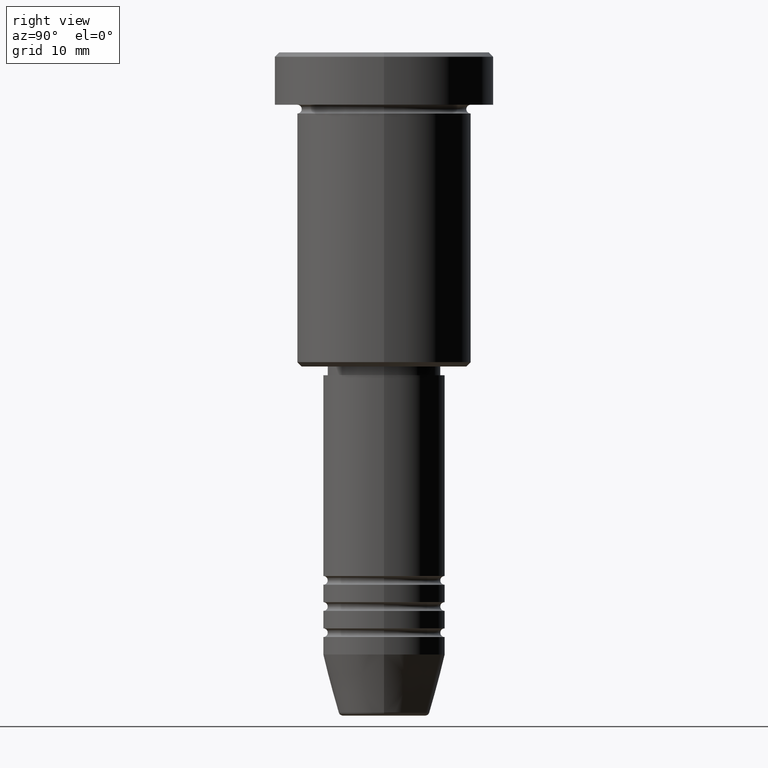
[diagram: clean part render]
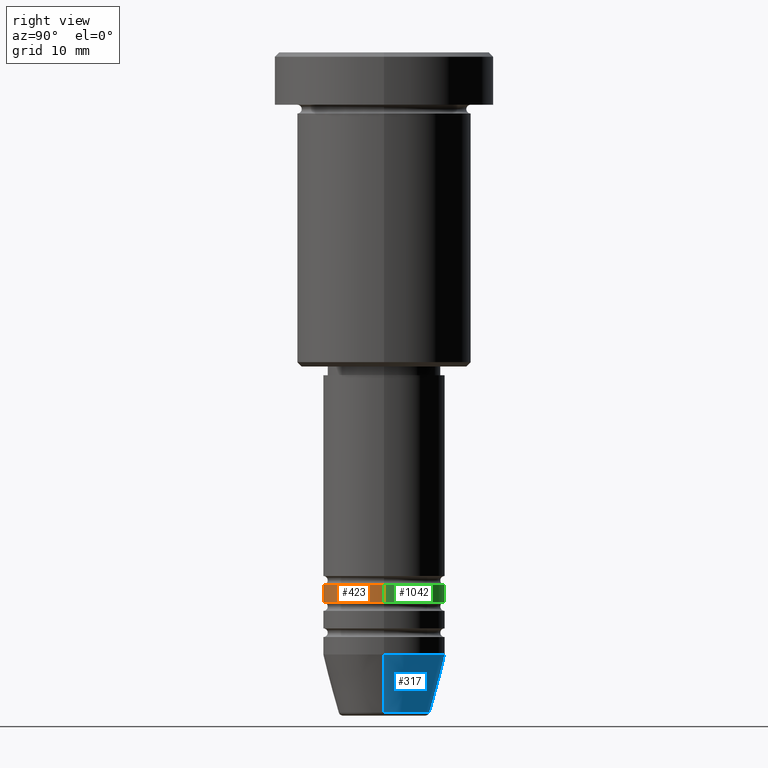
[diagram: same view with three faces highlighted in distinct colors, each labeled with its STEP entity id]
A machine part, right view with three faces highlighted in distinct colors.
Their STEP definitions:

[orange] entity #423 — the highlighted cylindrical surface (partial cylindrical patch) has radius 7 mm, axis along (-0, -0, 1).
#17 = CARTESIAN_POINT ( 'NONE',  ( 0.000000000000000000, 0.000000000000000000, 0.000000000000000000 ) ) ;
#20 = DIRECTION ( 'NONE',  ( 1.000000000000000000, 0.000000000000000000, 0.000000000000000000 ) ) ;
#33 = EDGE_CURVE ( 'NONE', #780, #972, #547, .T. ) ;
#81 = ORIENTED_EDGE ( 'NONE', *, *, #1152, .F. ) ;
#89 = ORIENTED_EDGE ( 'NONE', *, *, #522, .T. ) ;
#122 = CARTESIAN_POINT ( 'NONE',  ( 7.000000000000000000, 0.000000000000000000, -62.99999999999998579 ) ) ;
#233 = LINE ( 'NONE', #712, #901 ) ;
#236 = ORIENTED_EDGE ( 'NONE', *, *, #380, .T. ) ;
#248 = DIRECTION ( 'NONE',  ( -0.000000000000000000, -0.000000000000000000, 1.000000000000000000 ) ) ;
#263 = EDGE_LOOP ( 'NONE', ( #81, #89, #236, #328 ) ) ;
#267 = AXIS2_PLACEMENT_3D ( 'NONE', #953, #248, #765 ) ;
#294 = LINE ( 'NONE', #659, #1092 ) ;
#328 = ORIENTED_EDGE ( 'NONE', *, *, #33, .F. ) ;
#380 = EDGE_CURVE ( 'NONE', #773, #972, #294, .T. ) ;
#423 = ADVANCED_FACE ( 'NONE', ( #845 ), #1104, .T. ) ;
#425 = CARTESIAN_POINT ( 'NONE',  ( -7.000000000000000000, 8.572527594031473190E-16, -60.99999999999998579 ) ) ;
#478 = AXIS2_PLACEMENT_3D ( 'NONE', #848, #1026, #20 ) ;
#485 = DIRECTION ( 'NONE',  ( -0.000000000000000000, -0.000000000000000000, 1.000000000000000000 ) ) ;
#522 = EDGE_CURVE ( 'NONE', #889, #773, #836, .T. ) ;
#547 = CIRCLE ( 'NONE', #478, 7.000000000000000000 ) ;
#603 = CARTESIAN_POINT ( 'NONE',  ( 7.000000000000000000, 0.000000000000000000, -60.99999999999998579 ) ) ;
#659 = CARTESIAN_POINT ( 'NONE',  ( 7.000000000000000000, 0.000000000000000000, 0.000000000000000000 ) ) ;
#675 = CARTESIAN_POINT ( 'NONE',  ( -7.000000000000000000, 8.572527594031473190E-16, -62.99999999999998579 ) ) ;
#712 = CARTESIAN_POINT ( 'NONE',  ( -7.000000000000000000, 8.572527594031473190E-16, 0.000000000000000000 ) ) ;
#749 = DIRECTION ( 'NONE',  ( -0.000000000000000000, -0.000000000000000000, 1.000000000000000000 ) ) ;
#752 = DIRECTION ( 'NONE',  ( -0.000000000000000000, -0.000000000000000000, 1.000000000000000000 ) ) ;
#765 = DIRECTION ( 'NONE',  ( 1.000000000000000000, 0.000000000000000000, 0.000000000000000000 ) ) ;
#773 = VERTEX_POINT ( 'NONE', #122 ) ;
#780 = VERTEX_POINT ( 'NONE', #425 ) ;
#836 = CIRCLE ( 'NONE', #267, 7.000000000000000000 ) ;
#845 = FACE_OUTER_BOUND ( 'NONE', #263, .T. ) ;
#848 = CARTESIAN_POINT ( 'NONE',  ( 0.000000000000000000, 0.000000000000000000, -60.99999999999998579 ) ) ;
#889 = VERTEX_POINT ( 'NONE', #675 ) ;
#901 = VECTOR ( 'NONE', #485, 1000.000000000000000 ) ;
#953 = CARTESIAN_POINT ( 'NONE',  ( 0.000000000000000000, 0.000000000000000000, -62.99999999999998579 ) ) ;
#972 = VERTEX_POINT ( 'NONE', #603 ) ;
#1026 = DIRECTION ( 'NONE',  ( -0.000000000000000000, -0.000000000000000000, 1.000000000000000000 ) ) ;
#1034 = AXIS2_PLACEMENT_3D ( 'NONE', #17, #749, #1101 ) ;
#1092 = VECTOR ( 'NONE', #752, 1000.000000000000000 ) ;
#1101 = DIRECTION ( 'NONE',  ( 1.000000000000000000, 0.000000000000000000, 0.000000000000000000 ) ) ;
#1104 = CYLINDRICAL_SURFACE ( 'NONE', #1034, 7.000000000000000000 ) ;
#1152 = EDGE_CURVE ( 'NONE', #889, #780, #233, .T. ) ;

[blue] entity #317 — the highlighted conical surface has half-angle 15 deg.
#47 = CIRCLE ( 'NONE', #250, 7.000000000000000000 ) ;
#51 = DIRECTION ( 'NONE',  ( -0.2588190451025214056, 3.169619151431772953E-17, 0.9659258262890680902 ) ) ;
#59 = EDGE_CURVE ( 'NONE', #735, #841, #866, .T. ) ;
#154 = DIRECTION ( 'NONE',  ( -0.000000000000000000, -0.000000000000000000, 1.000000000000000000 ) ) ;
#157 = ORIENTED_EDGE ( 'NONE', *, *, #59, .F. ) ;
#187 = DIRECTION ( 'NONE',  ( 1.000000000000000000, 0.000000000000000000, 0.000000000000000000 ) ) ;
#250 = AXIS2_PLACEMENT_3D ( 'NONE', #732, #154, #518 ) ;
#314 = ORIENTED_EDGE ( 'NONE', *, *, #1065, .F. ) ;
#317 = ADVANCED_FACE ( 'NONE', ( #1086 ), #1063, .T. ) ;
#385 = CARTESIAN_POINT ( 'NONE',  ( 0.000000000000000000, 0.000000000000000000, -75.62940952255127058 ) ) ;
#464 = VERTEX_POINT ( 'NONE', #942 ) ;
#503 = DIRECTION ( 'NONE',  ( 1.000000000000000000, 0.000000000000000000, 0.000000000000000000 ) ) ;
#518 = DIRECTION ( 'NONE',  ( 1.000000000000000000, 0.000000000000000000, 0.000000000000000000 ) ) ;
#583 = CARTESIAN_POINT ( 'NONE',  ( 5.223655072137187716, 0.000000000000000000, -75.62940952255127058 ) ) ;
#615 = CARTESIAN_POINT ( 'NONE',  ( 7.000000000000000000, 0.000000000000000000, -69.00000000000000000 ) ) ;
#617 = EDGE_CURVE ( 'NONE', #464, #656, #1037, .T. ) ;
#649 = CARTESIAN_POINT ( 'NONE',  ( 0.000000000000000000, 0.000000000000000000, -69.00000000000000000 ) ) ;
#656 = VERTEX_POINT ( 'NONE', #1139 ) ;
#707 = VECTOR ( 'NONE', #961, 1000.000000000000000 ) ;
#732 = CARTESIAN_POINT ( 'NONE',  ( 0.000000000000000000, 0.000000000000000000, -69.00000000000000000 ) ) ;
#735 = VERTEX_POINT ( 'NONE', #583 ) ;
#743 = VECTOR ( 'NONE', #51, 1000.000000000000000 ) ;
#830 = DIRECTION ( 'NONE',  ( -0.000000000000000000, -0.000000000000000000, 1.000000000000000000 ) ) ;
#841 = VERTEX_POINT ( 'NONE', #1005 ) ;
#866 = LINE ( 'NONE', #615, #707 ) ;
#869 = ORIENTED_EDGE ( 'NONE', *, *, #928, .T. ) ;
#880 = AXIS2_PLACEMENT_3D ( 'NONE', #385, #830, #503 ) ;
#883 = CARTESIAN_POINT ( 'NONE',  ( -7.000000000000000000, 8.572527594031473190E-16, -69.00000000000000000 ) ) ;
#928 = EDGE_CURVE ( 'NONE', #735, #464, #991, .T. ) ;
#942 = CARTESIAN_POINT ( 'NONE',  ( -5.223655072137187716, 7.484830028987059188E-16, -75.62940952255127058 ) ) ;
#961 = DIRECTION ( 'NONE',  ( 0.2588190451025214056, 0.000000000000000000, 0.9659258262890680902 ) ) ;
#977 = ORIENTED_EDGE ( 'NONE', *, *, #617, .T. ) ;
#991 = CIRCLE ( 'NONE', #880, 5.223655072137187716 ) ;
#1005 = CARTESIAN_POINT ( 'NONE',  ( 7.000000000000000000, 0.000000000000000000, -69.00000000000000000 ) ) ;
#1006 = DIRECTION ( 'NONE',  ( -0.000000000000000000, -0.000000000000000000, 1.000000000000000000 ) ) ;
#1009 = AXIS2_PLACEMENT_3D ( 'NONE', #649, #1006, #187 ) ;
#1037 = LINE ( 'NONE', #883, #743 ) ;
#1063 = CONICAL_SURFACE ( 'NONE', #1009, 7.000000000000000000, 0.2617993877991501295 ) ;
#1065 = EDGE_CURVE ( 'NONE', #841, #656, #47, .T. ) ;
#1086 = FACE_OUTER_BOUND ( 'NONE', #1087, .T. ) ;
#1087 = EDGE_LOOP ( 'NONE', ( #869, #977, #314, #157 ) ) ;
#1139 = CARTESIAN_POINT ( 'NONE',  ( -7.000000000000000000, 8.572527594031473190E-16, -69.00000000000000000 ) ) ;

[green] entity #1042 — the highlighted cylindrical surface (partial cylindrical patch) has radius 7 mm, axis along (-0, -0, 1).
#6 = ORIENTED_EDGE ( 'NONE', *, *, #150, .F. ) ;
#42 = AXIS2_PLACEMENT_3D ( 'NONE', #402, #134, #601 ) ;
#100 = EDGE_LOOP ( 'NONE', ( #1164, #1089, #6, #706 ) ) ;
#122 = CARTESIAN_POINT ( 'NONE',  ( 7.000000000000000000, 0.000000000000000000, -62.99999999999998579 ) ) ;
#134 = DIRECTION ( 'NONE',  ( -0.000000000000000000, -0.000000000000000000, 1.000000000000000000 ) ) ;
#150 = EDGE_CURVE ( 'NONE', #972, #780, #651, .T. ) ;
#233 = LINE ( 'NONE', #712, #901 ) ;
#294 = LINE ( 'NONE', #659, #1092 ) ;
#298 = CIRCLE ( 'NONE', #775, 7.000000000000000000 ) ;
#354 = CARTESIAN_POINT ( 'NONE',  ( 0.000000000000000000, 0.000000000000000000, 0.000000000000000000 ) ) ;
#380 = EDGE_CURVE ( 'NONE', #773, #972, #294, .T. ) ;
#402 = CARTESIAN_POINT ( 'NONE',  ( 0.000000000000000000, 0.000000000000000000, -60.99999999999998579 ) ) ;
#425 = CARTESIAN_POINT ( 'NONE',  ( -7.000000000000000000, 8.572527594031473190E-16, -60.99999999999998579 ) ) ;
#449 = CYLINDRICAL_SURFACE ( 'NONE', #1023, 7.000000000000000000 ) ;
#485 = DIRECTION ( 'NONE',  ( -0.000000000000000000, -0.000000000000000000, 1.000000000000000000 ) ) ;
#543 = FACE_OUTER_BOUND ( 'NONE', #100, .T. ) ;
#601 = DIRECTION ( 'NONE',  ( 1.000000000000000000, 0.000000000000000000, 0.000000000000000000 ) ) ;
#603 = CARTESIAN_POINT ( 'NONE',  ( 7.000000000000000000, 0.000000000000000000, -60.99999999999998579 ) ) ;
#651 = CIRCLE ( 'NONE', #42, 7.000000000000000000 ) ;
#659 = CARTESIAN_POINT ( 'NONE',  ( 7.000000000000000000, 0.000000000000000000, 0.000000000000000000 ) ) ;
#675 = CARTESIAN_POINT ( 'NONE',  ( -7.000000000000000000, 8.572527594031473190E-16, -62.99999999999998579 ) ) ;
#706 = ORIENTED_EDGE ( 'NONE', *, *, #380, .F. ) ;
#712 = CARTESIAN_POINT ( 'NONE',  ( -7.000000000000000000, 8.572527594031473190E-16, 0.000000000000000000 ) ) ;
#752 = DIRECTION ( 'NONE',  ( -0.000000000000000000, -0.000000000000000000, 1.000000000000000000 ) ) ;
#766 = CARTESIAN_POINT ( 'NONE',  ( 0.000000000000000000, 0.000000000000000000, -62.99999999999998579 ) ) ;
#773 = VERTEX_POINT ( 'NONE', #122 ) ;
#775 = AXIS2_PLACEMENT_3D ( 'NONE', #766, #1061, #1116 ) ;
#780 = VERTEX_POINT ( 'NONE', #425 ) ;
#889 = VERTEX_POINT ( 'NONE', #675 ) ;
#901 = VECTOR ( 'NONE', #485, 1000.000000000000000 ) ;
#912 = DIRECTION ( 'NONE',  ( -0.000000000000000000, -0.000000000000000000, 1.000000000000000000 ) ) ;
#972 = VERTEX_POINT ( 'NONE', #603 ) ;
#1023 = AXIS2_PLACEMENT_3D ( 'NONE', #354, #912, #1179 ) ;
#1042 = ADVANCED_FACE ( 'NONE', ( #543 ), #449, .T. ) ;
#1061 = DIRECTION ( 'NONE',  ( -0.000000000000000000, -0.000000000000000000, 1.000000000000000000 ) ) ;
#1089 = ORIENTED_EDGE ( 'NONE', *, *, #1152, .T. ) ;
#1092 = VECTOR ( 'NONE', #752, 1000.000000000000000 ) ;
#1103 = EDGE_CURVE ( 'NONE', #773, #889, #298, .T. ) ;
#1116 = DIRECTION ( 'NONE',  ( 1.000000000000000000, 0.000000000000000000, 0.000000000000000000 ) ) ;
#1152 = EDGE_CURVE ( 'NONE', #889, #780, #233, .T. ) ;
#1164 = ORIENTED_EDGE ( 'NONE', *, *, #1103, .T. ) ;
#1179 = DIRECTION ( 'NONE',  ( 1.000000000000000000, 0.000000000000000000, 0.000000000000000000 ) ) ;